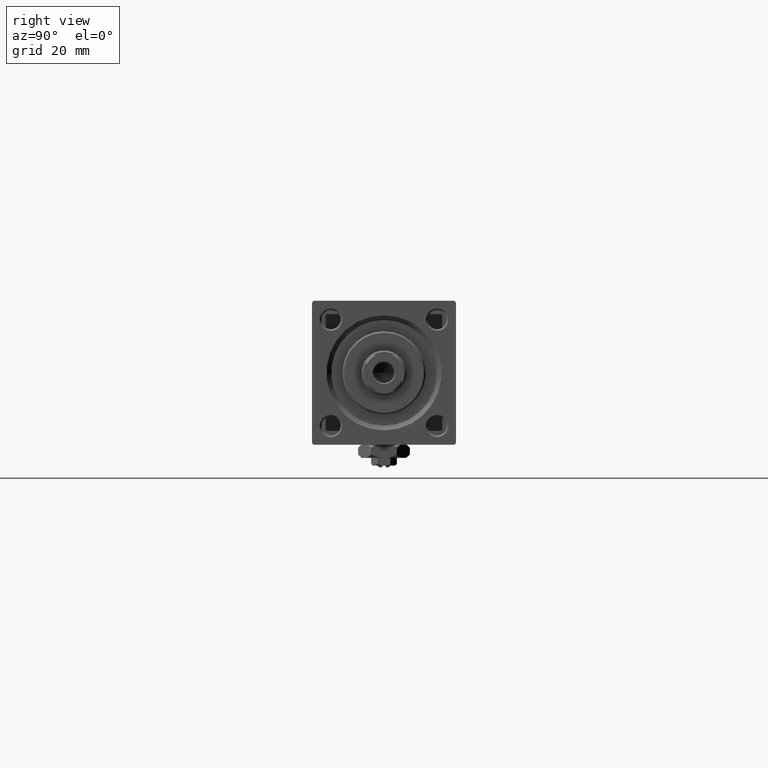
[diagram: clean part render]
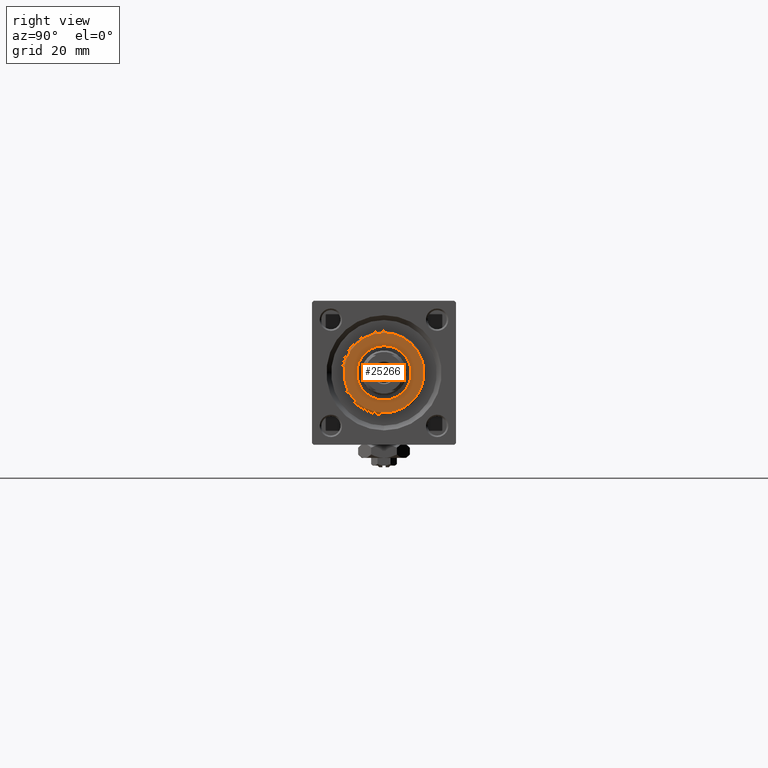
[diagram: same view with one face highlighted and labeled with its STEP entity id]
A machine part, right view. The second image highlights one B-rep face of the part: STEP entity #25266.
In plain terms, the highlighted planar face has unit normal (1, 0, 0).
Its self-contained STEP definition (entity closure, byte-faithful):
#2137 = DIRECTION ( 'NONE',  ( 0.000000000000000000, 0.000000000000000000, 1.000000000000000000 ) ) ;
#2285 = ORIENTED_EDGE ( 'NONE', *, *, #10212, .F. ) ;
#2971 = EDGE_CURVE ( 'NONE', #22363, #17975, #50043, .T. ) ;
#3461 = CIRCLE ( 'NONE', #44065, 12.50000000000001066 ) ;
#4155 = ORIENTED_EDGE ( 'NONE', *, *, #8458, .T. ) ;
#4195 = EDGE_LOOP ( 'NONE', ( #43068, #4155 ) ) ;
#4234 = CARTESIAN_POINT ( 'NONE',  ( 0.000000000000000000, 0.000000000000000000, 36.69999999999999574 ) ) ;
#8046 = ORIENTED_EDGE ( 'NONE', *, *, #2971, .F. ) ;
#8458 = EDGE_CURVE ( 'NONE', #33045, #43049, #41800, .T. ) ;
#10212 = EDGE_CURVE ( 'NONE', #17975, #22363, #41052, .T. ) ;
#11352 = EDGE_LOOP ( 'NONE', ( #8046, #2285 ) ) ;
#12139 = DIRECTION ( 'NONE',  ( 0.000000000000000000, 0.000000000000000000, 1.000000000000000000 ) ) ;
#14515 = PLANE ( 'NONE',  #24332 ) ;
#14660 = CARTESIAN_POINT ( 'NONE',  ( -12.50000000000001066, 0.000000000000000000, 36.69999999999999574 ) ) ;
#14773 = DIRECTION ( 'NONE',  ( 1.000000000000000000, 0.000000000000000000, -0.000000000000000000 ) ) ;
#14783 = DIRECTION ( 'NONE',  ( 1.000000000000000000, 0.000000000000000000, 0.000000000000000000 ) ) ;
#15762 = CARTESIAN_POINT ( 'NONE',  ( -8.500000000000000000, 1.040949779275250140E-15, 36.69999999999999574 ) ) ;
#16936 = EDGE_CURVE ( 'NONE', #43049, #33045, #3461, .T. ) ;
#17508 = CARTESIAN_POINT ( 'NONE',  ( 0.000000000000000000, 0.000000000000000000, 36.69999999999999574 ) ) ;
#17975 = VERTEX_POINT ( 'NONE', #15762 ) ;
#18122 = CARTESIAN_POINT ( 'NONE',  ( 0.000000000000000000, 0.000000000000000000, 36.69999999999999574 ) ) ;
#18730 = FACE_OUTER_BOUND ( 'NONE', #4195, .T. ) ;
#18906 = DIRECTION ( 'NONE',  ( 1.000000000000000000, 0.000000000000000000, 0.000000000000000000 ) ) ;
#20696 = DIRECTION ( 'NONE',  ( 0.000000000000000000, 0.000000000000000000, 1.000000000000000000 ) ) ;
#22363 = VERTEX_POINT ( 'NONE', #23506 ) ;
#23243 = CARTESIAN_POINT ( 'NONE',  ( 0.000000000000000000, 0.000000000000000000, 36.69999999999999574 ) ) ;
#23506 = CARTESIAN_POINT ( 'NONE',  ( 8.500000000000000000, 0.000000000000000000, 36.69999999999999574 ) ) ;
#24332 = AXIS2_PLACEMENT_3D ( 'NONE', #42528, #34860, #14773 ) ;
#25266 = ADVANCED_FACE ( 'NONE', ( #30902, #18730 ), #14515, .T. ) ;
#25636 = CARTESIAN_POINT ( 'NONE',  ( 12.50000000000001066, 1.561424668912876097E-15, 36.69999999999999574 ) ) ;
#30902 = FACE_BOUND ( 'NONE', #11352, .T. ) ;
#33045 = VERTEX_POINT ( 'NONE', #25636 ) ;
#34860 = DIRECTION ( 'NONE',  ( 0.000000000000000000, 0.000000000000000000, 1.000000000000000000 ) ) ;
#40971 = AXIS2_PLACEMENT_3D ( 'NONE', #18122, #42699, #18906 ) ;
#41052 = CIRCLE ( 'NONE', #46080, 8.500000000000000000 ) ;
#41800 = CIRCLE ( 'NONE', #40971, 12.50000000000001066 ) ;
#42528 = CARTESIAN_POINT ( 'NONE',  ( 0.000000000000000000, 0.000000000000000000, 36.69999999999999574 ) ) ;
#42699 = DIRECTION ( 'NONE',  ( 0.000000000000000000, 0.000000000000000000, 1.000000000000000000 ) ) ;
#43049 = VERTEX_POINT ( 'NONE', #14660 ) ;
#43068 = ORIENTED_EDGE ( 'NONE', *, *, #16936, .T. ) ;
#44065 = AXIS2_PLACEMENT_3D ( 'NONE', #23243, #2137, #14783 ) ;
#44739 = DIRECTION ( 'NONE',  ( 1.000000000000000000, 0.000000000000000000, 0.000000000000000000 ) ) ;
#45939 = AXIS2_PLACEMENT_3D ( 'NONE', #17508, #20696, #44739 ) ;
#46080 = AXIS2_PLACEMENT_3D ( 'NONE', #4234, #12139, #48851 ) ;
#48851 = DIRECTION ( 'NONE',  ( 1.000000000000000000, 0.000000000000000000, 0.000000000000000000 ) ) ;
#50043 = CIRCLE ( 'NONE', #45939, 8.500000000000000000 ) ;